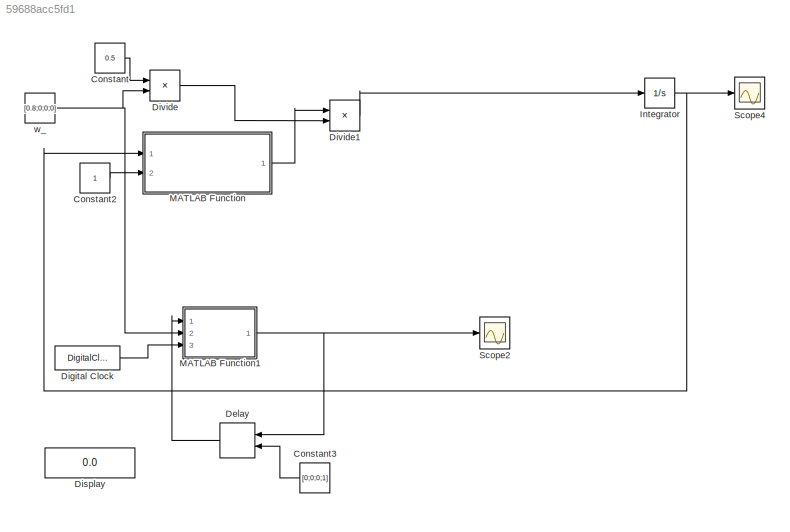
MODEL slx_59688acc5fd1
KIND model
BLOCK [Constant] Constant
  Value = 0.5
BLOCK [Constant] Constant2
BLOCK [Constant] Constant3
  Value = [0;0;0;1]
BLOCK [Delay] Delay
  DelayLength = 1
  InitialCondition = 0
  InitialConditionSource = Input port
  InputPortMap = u0,p4
  Ports = [2, 1]
BLOCK [DigitalClock] Digital Clock
  SampleTime = -1
BLOCK [Display] Display
  Decimation = 1
  Ports = [1]
BLOCK [Product] Divide
  InputSameDT = off
  Inputs = **
  OutDataTypeStr = Inherit: Inherit via internal rule
  Ports = [2, 1]
  RndMeth = Floor
  SaturateOnIntegerOverflow = off
BLOCK [Product] Divide1
  InputSameDT = off
  Inputs = **
  Multiplication = Matrix(*)
  OutDataTypeStr = Inherit: Inherit via internal rule
  Ports = [2, 1]
  RndMeth = Floor
  SaturateOnIntegerOverflow = off
BLOCK [Integrator] Integrator
  InitialCondition = [0;0;0;1]
  Ports = [1, 1]
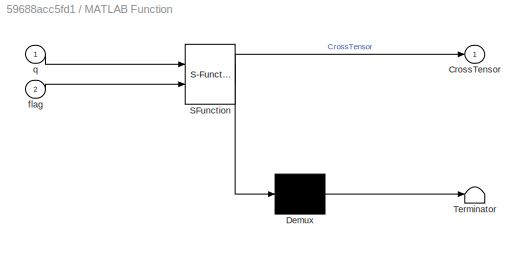
BLOCK [SubSystem] MATLAB Function
  ErrorFcn = Stateflow.Translate.translate
  PermitHierarchicalResolution = ExplicitOnly
  Ports = [2, 1]
  RequestExecContextInheritance = off
  SFBlockType = MATLAB Function
  TreatAsAtomicUnit = on
BLOCK [Demux] MATLAB Function/ Demux 
  Outputs = 1
  Ports = [1, 1]
BLOCK [S-Function] MATLAB Function/ SFunction 
  EnableBusSupport = on
  FunctionName = sf_sfun
  PortCounts = [2 2]
  Ports = [2, 2]
  Tag = Stateflow S-Function test_q 2
BLOCK [Terminator] MATLAB Function/ Terminator 
BLOCK [Outport] MATLAB Function/CrossTensor
  IconDisplay = Port number
BLOCK [Inport] MATLAB Function/flag
  IconDisplay = Port number
  Port = 2
BLOCK [Inport] MATLAB Function/q
  IconDisplay = Port number
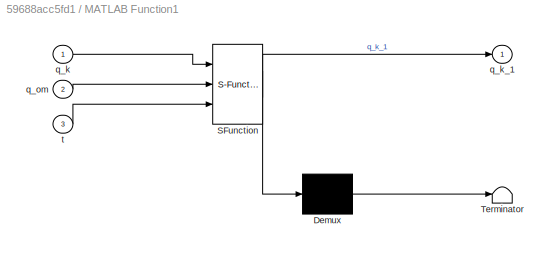
BLOCK [SubSystem] MATLAB Function1
  ErrorFcn = Stateflow.Translate.translate
  PermitHierarchicalResolution = ExplicitOnly
  Ports = [3, 1]
  RequestExecContextInheritance = off
  SFBlockType = MATLAB Function
  TreatAsAtomicUnit = on
BLOCK [Demux] MATLAB Function1/ Demux 
  Outputs = 1
  Ports = [1, 1]
BLOCK [S-Function] MATLAB Function1/ SFunction 
  EnableBusSupport = on
  FunctionName = sf_sfun
  PortCounts = [3 2]
  Ports = [3, 2]
  Tag = Stateflow S-Function test_q 1
BLOCK [Terminator] MATLAB Function1/ Terminator 
BLOCK [Inport] MATLAB Function1/q_k
  IconDisplay = Port number
BLOCK [Outport] MATLAB Function1/q_k_1
  IconDisplay = Port number
BLOCK [Inport] MATLAB Function1/q_om
  IconDisplay = Port number
  Port = 2
BLOCK [Inport] MATLAB Function1/t
  IconDisplay = Port number
  Port = 3
BLOCK [Scope] Scope2
  DataFormat = StructureWithTime
  Floating = off
  NumInputPorts = 1
  Ports = [1]
  SampleTime = 0
  SaveName = ScopeData2
  ShowLegends = off
BLOCK [Scope] Scope4
  DataFormat = StructureWithTime
  Floating = off
  NumInputPorts = 1
  Ports = [1]
  SampleTime = 0
  SaveName = ScopeData4
  ShowLegends = off
BLOCK [Constant] w_
  Value = [0.8;0;0;0]
LINE Constant2:1 -> MATLAB Function:2
LINE Constant3:1 -> Delay:2
LINE Constant:1 -> Divide:1
LINE Delay:1 -> MATLAB Function1:1
LINE Digital Clock:1 -> MATLAB Function1:3
LINE Divide1:1 -> Integrator:1
LINE Divide:1 -> Divide1:2
NET Integrator:1 -> MATLAB Function:1, Scope4:1
NET MATLAB Function1:1 -> Delay:1, Scope2:1
LINE MATLAB Function:1 -> Divide1:1
NET w_:1 -> Divide:2, MATLAB Function1:2
note: NET lines group one-source signal fan-out (src -> all destinations, sorted); 1:1 wires keep LINE
